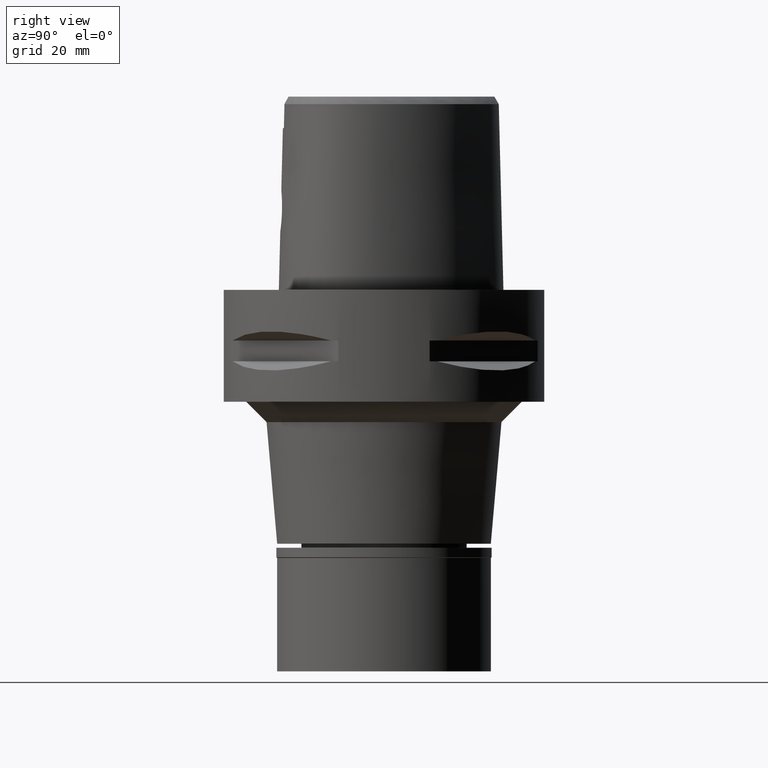
[diagram: clean part render]
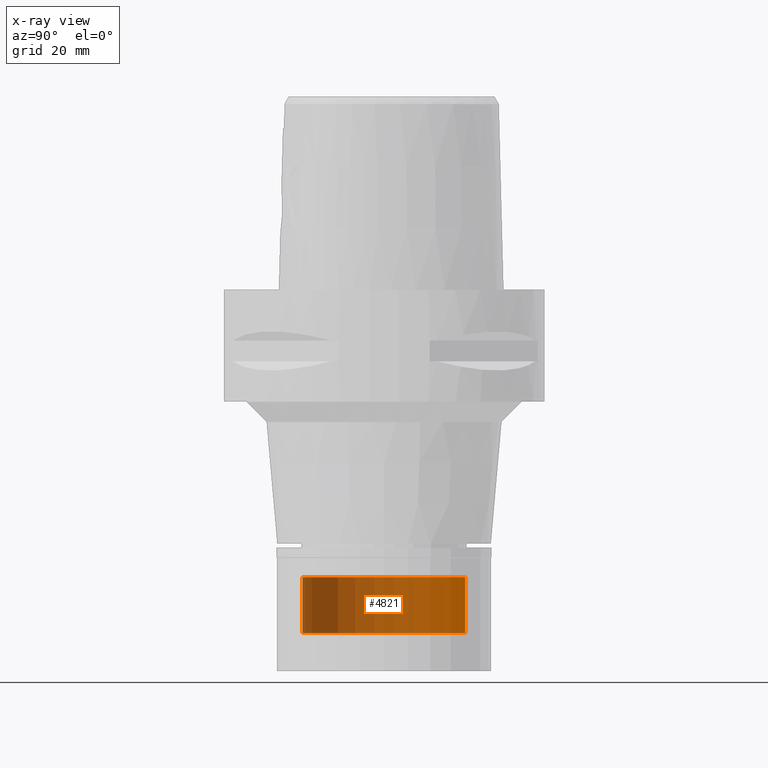
[diagram: x-ray — body ghosted, one internal face saturated and labeled with its STEP entity id]
A machine part, right view, then the same camera in x-ray: the body is ghosted and one INTERNAL B-rep face — a face not visible from any outside direction — is saturated and labeled: STEP entity #4821.
In plain terms, the highlighted cylindrical surface (partial cylindrical patch) has radius 16 mm, axis along (0, 0, -1).
Its self-contained STEP definition (entity closure, byte-faithful):
#78 = CARTESIAN_POINT ( 'NONE',  ( 0.0000000000000000000, 1.265978628619000106E-14, 3.375000000000000000 ) ) ;
#396 = DIRECTION ( 'NONE',  ( 0.0000000000000000000, 1.000000000000000000, 0.0000000000000000000 ) ) ;
#422 = FACE_OUTER_BOUND ( 'NONE', #4529, .T. ) ;
#594 = LINE ( 'NONE', #3945, #664 ) ;
#634 = VECTOR ( 'NONE', #688, 1000.000000000000000 ) ;
#664 = VECTOR ( 'NONE', #2513, 1000.000000000000000 ) ;
#688 = DIRECTION ( 'NONE',  ( 0.0000000000000000000, 0.0000000000000000000, -1.000000000000000000 ) ) ;
#1017 = DIRECTION ( 'NONE',  ( 0.0000000000000000000, 0.0000000000000000000, -1.000000000000000000 ) ) ;
#1200 = EDGE_CURVE ( 'NONE', #3295, #3638, #3793, .T. ) ;
#1330 = ORIENTED_EDGE ( 'NONE', *, *, #2926, .F. ) ;
#1380 = VERTEX_POINT ( 'NONE', #3580 ) ;
#1636 = VERTEX_POINT ( 'NONE', #2987 ) ;
#1706 = CYLINDRICAL_SURFACE ( 'NONE', #3501, 16.00000000000000000 ) ;
#2068 = CIRCLE ( 'NONE', #2301, 16.00000000000000000 ) ;
#2239 = CARTESIAN_POINT ( 'NONE',  ( 0.0000000000000000000, -16.00000000000000000, -56.50000000000000000 ) ) ;
#2301 = AXIS2_PLACEMENT_3D ( 'NONE', #3721, #1017, #4035 ) ;
#2318 = DIRECTION ( 'NONE',  ( 0.0000000000000000000, 0.0000000000000000000, -1.000000000000000000 ) ) ;
#2362 = ORIENTED_EDGE ( 'NONE', *, *, #2820, .T. ) ;
#2513 = DIRECTION ( 'NONE',  ( 0.0000000000000000000, 0.0000000000000000000, -1.000000000000000000 ) ) ;
#2714 = DIRECTION ( 'NONE',  ( 0.0000000000000000000, 0.0000000000000000000, 1.000000000000000000 ) ) ;
#2820 = EDGE_CURVE ( 'NONE', #1380, #1636, #2068, .T. ) ;
#2926 = EDGE_CURVE ( 'NONE', #1380, #3638, #4058, .T. ) ;
#2987 = CARTESIAN_POINT ( 'NONE',  ( 0.0000000000000000000, 16.00000000000000000, -56.50000000000000000 ) ) ;
#3094 = AXIS2_PLACEMENT_3D ( 'NONE', #3824, #2714, #396 ) ;
#3214 = DIRECTION ( 'NONE',  ( 0.0000000000000000000, -1.000000000000000000, 0.0000000000000000000 ) ) ;
#3295 = VERTEX_POINT ( 'NONE', #3486 ) ;
#3486 = CARTESIAN_POINT ( 'NONE',  ( 0.0000000000000000000, 16.00000000000000000, -67.50000000000000000 ) ) ;
#3501 = AXIS2_PLACEMENT_3D ( 'NONE', #78, #2318, #3214 ) ;
#3580 = CARTESIAN_POINT ( 'NONE',  ( 0.0000000000000000000, -16.00000000000000000, -56.50000000000000000 ) ) ;
#3638 = VERTEX_POINT ( 'NONE', #4479 ) ;
#3721 = CARTESIAN_POINT ( 'NONE',  ( 0.0000000000000000000, 1.265978628619000106E-14, -56.50000000000000000 ) ) ;
#3793 = CIRCLE ( 'NONE', #3094, 16.00000000000000000 ) ;
#3824 = CARTESIAN_POINT ( 'NONE',  ( 0.0000000000000000000, 1.265978628619000106E-14, -67.50000000000000000 ) ) ;
#3897 = ORIENTED_EDGE ( 'NONE', *, *, #4403, .T. ) ;
#3945 = CARTESIAN_POINT ( 'NONE',  ( 0.0000000000000000000, 16.00000000000000000, -56.50000000000000000 ) ) ;
#4035 = DIRECTION ( 'NONE',  ( 0.0000000000000000000, -1.000000000000000000, 0.0000000000000000000 ) ) ;
#4058 = LINE ( 'NONE', #2239, #634 ) ;
#4403 = EDGE_CURVE ( 'NONE', #1636, #3295, #594, .T. ) ;
#4426 = ORIENTED_EDGE ( 'NONE', *, *, #1200, .T. ) ;
#4479 = CARTESIAN_POINT ( 'NONE',  ( 0.0000000000000000000, -16.00000000000000000, -67.50000000000000000 ) ) ;
#4529 = EDGE_LOOP ( 'NONE', ( #4426, #1330, #2362, #3897 ) ) ;
#4821 = ADVANCED_FACE ( 'NONE', ( #422 ), #1706, .T. ) ;